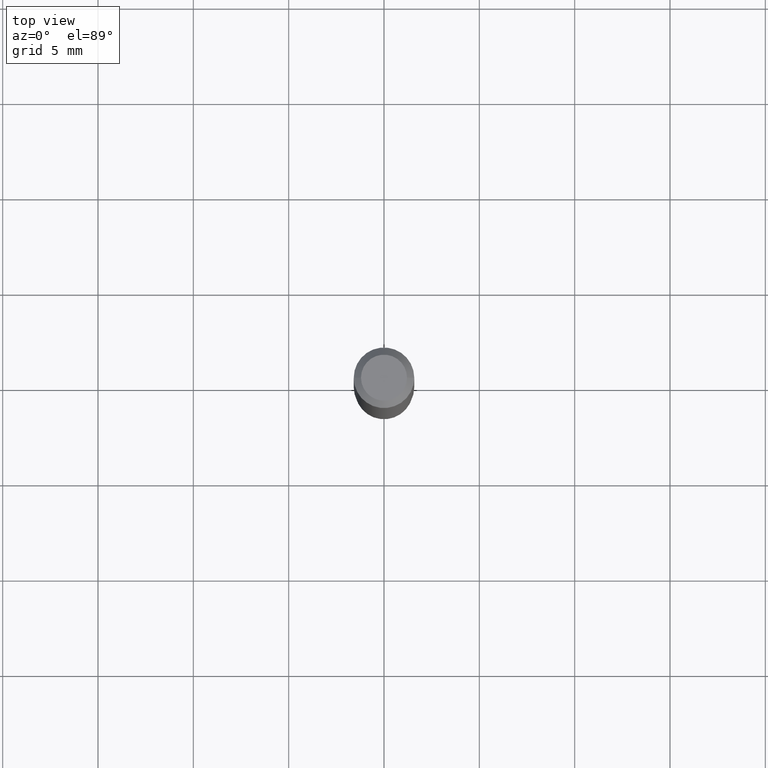
[diagram: clean part render]
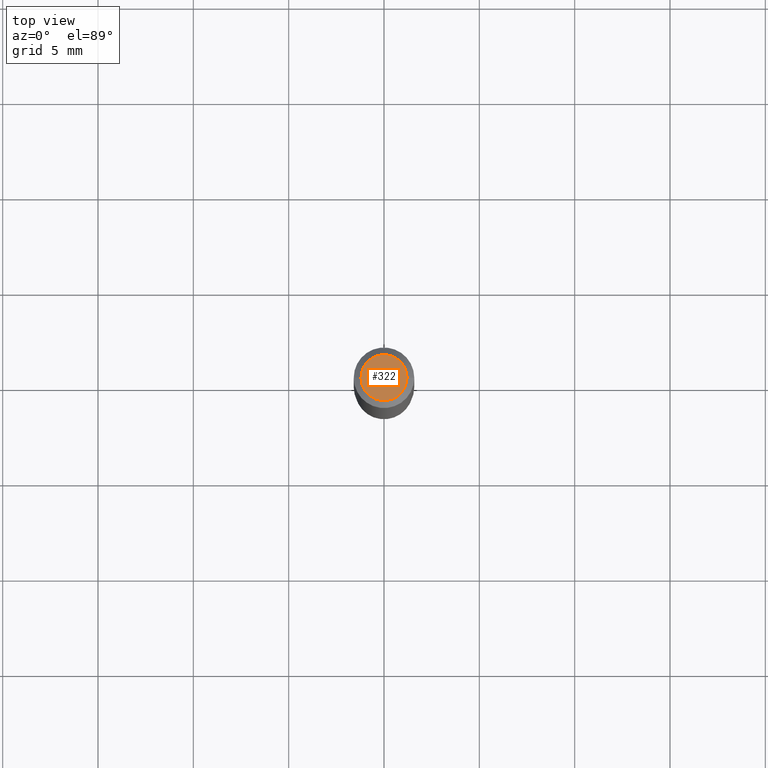
[diagram: same view with one face highlighted and labeled with its STEP entity id]
A machine part, top view. The second image highlights one B-rep face of the part: STEP entity #322.
In plain terms, the highlighted planar face has unit normal (0, -0, -1).
Its self-contained STEP definition (entity closure, byte-faithful):
#7 = AXIS2_PLACEMENT_3D ( 'NONE', #515, #438, #269 ) ;
#9 = ORIENTED_EDGE ( 'NONE', *, *, #482, .T. ) ;
#35 = PLANE ( 'NONE',  #257 ) ;
#52 = CARTESIAN_POINT ( 'NONE',  ( -6.680649051745406845E-45, 9.538196290434862081E-31, 2.731847993664263218E-16 ) ) ;
#69 = CARTESIAN_POINT ( 'NONE',  ( 3.316907271900976589E-16, 0.04750000000000000749, -2.925296391183627249E-17 ) ) ;
#76 = CARTESIAN_POINT ( 'NONE',  ( 0.04750000000000000749, -4.035134999187568762E-16, 2.731847993664288856E-16 ) ) ;
#84 = DIRECTION ( 'NONE',  ( 2.438088387897960049E-29, -3.491481338843145188E-15, -1.000000000000000000 ) ) ;
#94 = DIRECTION ( 'NONE',  ( -2.445468806185136597E-29, 3.491481338843145583E-15, 1.000000000000000000 ) ) ;
#159 = DIRECTION ( 'NONE',  ( -1.000000000000000000, 6.982962677686265922E-15, -4.876176775795935793E-29 ) ) ;
#162 = CIRCLE ( 'NONE', #7, 0.04750000000000000749 ) ;
#191 = FACE_OUTER_BOUND ( 'NONE', #333, .T. ) ;
#240 = VERTEX_POINT ( 'NONE', #343 ) ;
#257 = AXIS2_PLACEMENT_3D ( 'NONE', #69, #84, #159 ) ;
#269 = DIRECTION ( 'NONE',  ( 1.000000000000000000, -6.982962677686266711E-15, 4.852736867747365086E-29 ) ) ;
#302 = AXIS2_PLACEMENT_3D ( 'NONE', #52, #94, #446 ) ;
#308 = VERTEX_POINT ( 'NONE', #76 ) ;
#322 = ADVANCED_FACE ( 'NONE', ( #191 ), #35, .F. ) ;
#333 = EDGE_LOOP ( 'NONE', ( #360, #9 ) ) ;
#338 = EDGE_CURVE ( 'NONE', #240, #308, #162, .T. ) ;
#343 = CARTESIAN_POINT ( 'NONE',  ( -0.04750000000000000749, 3.578768372314221353E-16, 2.731847993664239060E-16 ) ) ;
#360 = ORIENTED_EDGE ( 'NONE', *, *, #338, .T. ) ;
#363 = CIRCLE ( 'NONE', #302, 0.04750000000000000749 ) ;
#438 = DIRECTION ( 'NONE',  ( -2.445468806185136597E-29, 3.491481338843145583E-15, 1.000000000000000000 ) ) ;
#446 = DIRECTION ( 'NONE',  ( 1.000000000000000000, -6.982962677686266711E-15, 4.852736867747365086E-29 ) ) ;
#482 = EDGE_CURVE ( 'NONE', #308, #240, #363, .T. ) ;
#515 = CARTESIAN_POINT ( 'NONE',  ( -6.680649051745406845E-45, 9.538196290434862081E-31, 2.731847993664263218E-16 ) ) ;